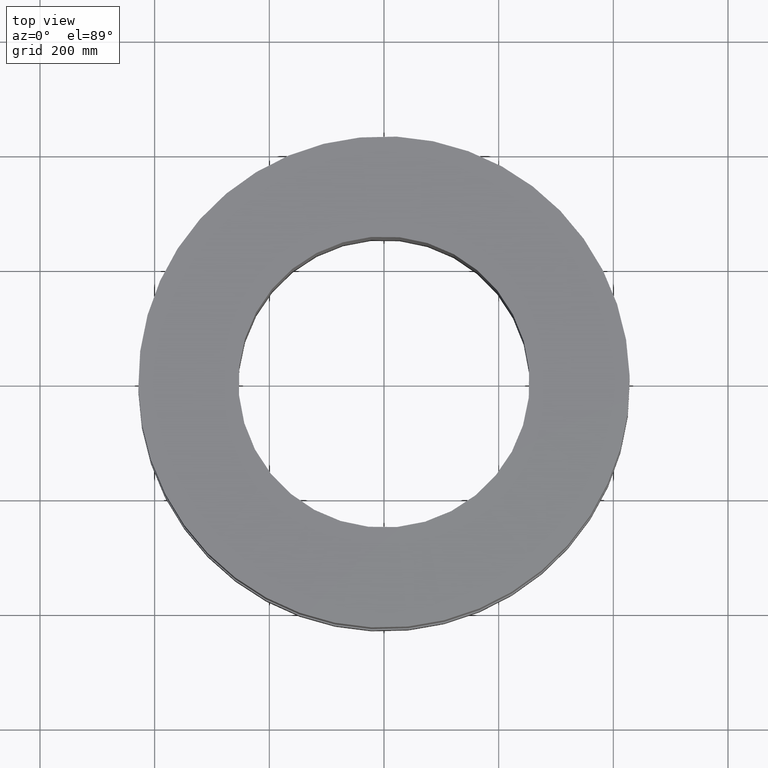
[diagram: clean part render]
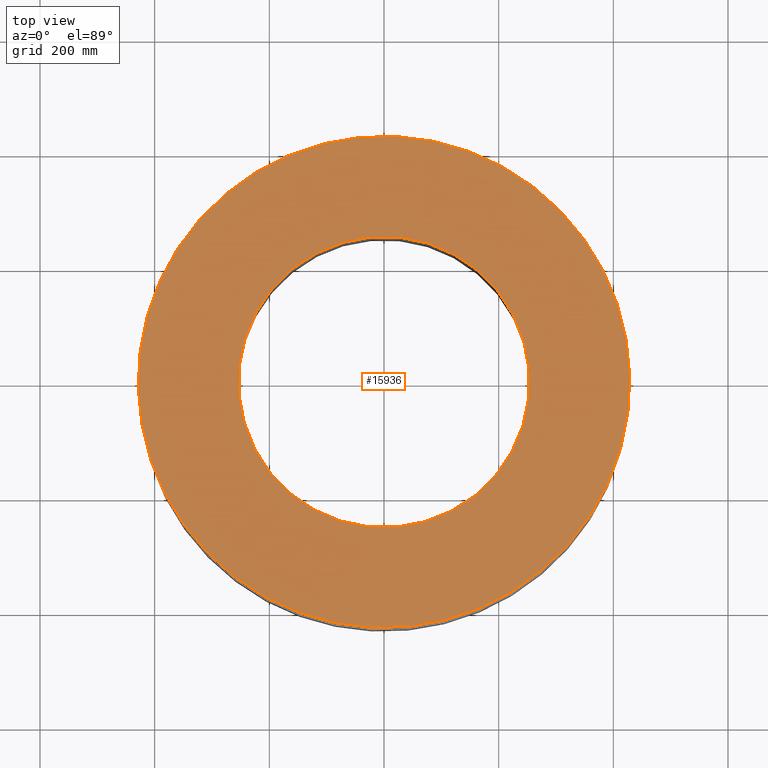
[diagram: same view with one face highlighted and labeled with its STEP entity id]
A machine part, top view. The second image highlights one B-rep face of the part: STEP entity #15936.
In plain terms, the highlighted planar face has unit normal (0, 0, -1).
Its self-contained STEP definition (entity closure, byte-faithful):
#5132=AXIS2_PLACEMENT_3D('Circle Axis2P3D',#5130,#5131,$) ;
#5151=AXIS2_PLACEMENT_3D('Circle Axis2P3D',#5149,#5150,$) ;
#15912=AXIS2_PLACEMENT_3D('Plane Axis2P3D',#15909,#15910,#15911) ;
#15920=AXIS2_PLACEMENT_3D('Circle Axis2P3D',#15918,#15919,$) ;
#15929=AXIS2_PLACEMENT_3D('Circle Axis2P3D',#15927,#15928,$) ;
#5127=CARTESIAN_POINT('Vertex',(8.09030596398,14.809205732,15.7500000001)) ;
#5130=CARTESIAN_POINT('Axis2P3D Location',(0.,0.,15.7500000001)) ;
#5134=CARTESIAN_POINT('Vertex',(-8.09030596398,-14.809205732,15.7500000001)) ;
#5149=CARTESIAN_POINT('Axis2P3D Location',(0.,0.,15.7500000001)) ;
#15909=CARTESIAN_POINT('Axis2P3D Location',(0.,16.8750000001,15.7500000001)) ;
#15918=CARTESIAN_POINT('Axis2P3D Location',(0.,0.,15.7500000001)) ;
#15922=CARTESIAN_POINT('Vertex',(-4.79425538606,-8.77582561894,15.7500000001)) ;
#15924=CARTESIAN_POINT('Vertex',(4.79425538606,8.77582561894,15.7500000001)) ;
#15927=CARTESIAN_POINT('Axis2P3D Location',(0.,0.,15.7500000001)) ;
#5131=DIRECTION('Axis2P3D Direction',(0.,0.,-0.0393700787402)) ;
#5150=DIRECTION('Axis2P3D Direction',(0.,0.,-0.0393700787402)) ;
#15910=DIRECTION('Axis2P3D Direction',(0.,0.,-0.0393700787402)) ;
#15911=DIRECTION('Axis2P3D XDirection',(0.0393700787402,0.,0.)) ;
#15919=DIRECTION('Axis2P3D Direction',(0.,0.,-0.0393700787402)) ;
#15928=DIRECTION('Axis2P3D Direction',(0.,0.,-0.0393700787402)) ;
#15915=ORIENTED_EDGE('',*,*,#5136,.F.) ;
#15916=ORIENTED_EDGE('',*,*,#5153,.F.) ;
#15933=ORIENTED_EDGE('',*,*,#15926,.T.) ;
#15934=ORIENTED_EDGE('',*,*,#15931,.T.) ;
#15935=FACE_BOUND('',#15932,.T.) ;
#15936=ADVANCED_FACE('PartBody',(#15917,#15935),#15913,.F.) ;
#5133=CIRCLE('generated circle',#5132,16.8750000001) ;
#5152=CIRCLE('generated circle',#5151,16.8750000001) ;
#15921=CIRCLE('generated circle',#15920,10.) ;
#15930=CIRCLE('generated circle',#15929,10.) ;
#5136=EDGE_CURVE('',#5128,#5135,#5133,.T.) ;
#5153=EDGE_CURVE('',#5135,#5128,#5152,.T.) ;
#15926=EDGE_CURVE('',#15923,#15925,#15921,.T.) ;
#15931=EDGE_CURVE('',#15925,#15923,#15930,.T.) ;
#15914=EDGE_LOOP('',(#15915,#15916)) ;
#15932=EDGE_LOOP('',(#15933,#15934)) ;
#15917=FACE_OUTER_BOUND('',#15914,.T.) ;
#15913=PLANE('',#15912) ;
#5128=VERTEX_POINT('',#5127) ;
#5135=VERTEX_POINT('',#5134) ;
#15923=VERTEX_POINT('',#15922) ;
#15925=VERTEX_POINT('',#15924) ;